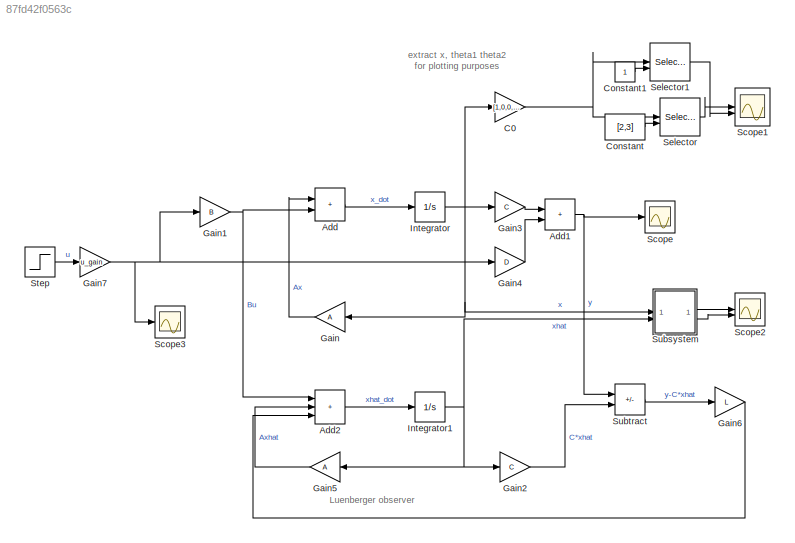
MODEL slx_87fd42f0563c
KIND model
CONFIG AbsTol = auto
CONFIG EnableMultiTasking = off
CONFIG FixedStep = auto
CONFIG MaxStep = auto
CONFIG MinStep = auto
CONFIG RelTol = 1e-3
CONFIG SampleTimeConstraint = Unconstrained
CONFIG SolverName = VariableStepAuto
CONFIG StartTime = 0.0
CONFIG StopTime = 30
BLOCK [Sum] Add
  IconShape = rectangular
BLOCK [Sum] Add1
  IconShape = rectangular
BLOCK [Sum] Add2
  IconShape = rectangular
  Inputs = +++
BLOCK [Gain] C0
  Gain = [1,0,0,0,0,0;0,0,1,0,0,0;0,0,0,0,1,0]
  Multiplication = Matrix(K*u)
BLOCK [Constant] Constant
  Value = [2,3]
BLOCK [Constant] Constant1
BLOCK [Gain] Gain
  Gain = A
  Multiplication = Matrix(K*u)
BLOCK [Gain] Gain1
  Gain = B
  Multiplication = Matrix(K*u)
BLOCK [Gain] Gain2
  Gain = C
  Multiplication = Matrix(K*u)
BLOCK [Gain] Gain3
  Gain = C
  Multiplication = Matrix(K*u)
BLOCK [Gain] Gain4
  Gain = D
  Multiplication = Matrix(K*u)
BLOCK [Gain] Gain5
  Gain = A
  Multiplication = Matrix(K*u)
BLOCK [Gain] Gain6
  Gain = L
  Multiplication = Matrix(K*u)
BLOCK [Gain] Gain7
  Gain = u_gain
BLOCK [Integrator] Integrator
  InitialCondition = init_state
BLOCK [Integrator] Integrator1
  InitialCondition = [0,0,0,0,0,0]'
BLOCK [Scope] Scope
  Floating = off
  NumInputPorts = 1
  ScopeSpecificationString = Simulink.scopes.TimeScopeBlockCfg('CurrentConfiguration', extmgr.ConfigurationSet(extmgr.Configuration('Core','General UI',true),extmgr.Configuration('Core','Source UI',true),extmgr.Configuration('Sources','WiredSimulink',true,'DataLoggingVariableName','ScopeData1'),extmgr.Configuration('Visuals','Time Domain',true),extmgr.Configuration('Tools','Plot Navigation',true),extmgr.Configuration('Tools',...<+40ch>
BLOCK [Scope] Scope1
  Floating = off
  NumInputPorts = 2
  ScopeSpecificationString = Simulink.scopes.TimeScopeBlockCfg('CurrentConfiguration', extmgr.ConfigurationSet(extmgr.Configuration('Core','General UI',true),extmgr.Configuration('Core','Source UI',true),extmgr.Configuration('Sources','WiredSimulink',true,'DataLoggingVariableName','ScopeData1'),extmgr.Configuration('Visuals','Time Domain',true,'SerializedDisplays',{struct('MinYLimReal','-0.42184','MaxYLimReal','0.40205','YLab...<+2130ch>
BLOCK [Scope] Scope2
  Floating = off
  NumInputPorts = 2
  ScopeSpecificationString = Simulink.scopes.TimeScopeBlockCfg('CurrentConfiguration', extmgr.ConfigurationSet(extmgr.Configuration('Core','General UI',true),extmgr.Configuration('Core','Source UI',true),extmgr.Configuration('Sources','WiredSimulink',true,'DataLoggingVariableName','ScopeData2'),extmgr.Configuration('Visuals','Time Domain',true,'SerializedDisplays',{struct('MinYLimReal','-1.6124','MaxYLimReal','5.73471','YLabe...<+2070ch>
BLOCK [Scope] Scope3
  Floating = off
  NumInputPorts = 1
  ScopeSpecificationString = Simulink.scopes.TimeScopeBlockCfg('CurrentConfiguration', extmgr.ConfigurationSet(extmgr.Configuration('Core','General UI',true),extmgr.Configuration('Core','Source UI',true),extmgr.Configuration('Sources','WiredSimulink',true,'DataLoggingVariableName','ScopeData3'),extmgr.Configuration('Visuals','Time Domain',true,'SerializedDisplays',{struct('MinYLimReal','90.00000','MaxYLimReal','110.00000','YL...<+1403ch>
BLOCK [Selector] Selector
  IndexOptions = Index vector (port)
  Indices = [1 3]
  InputPortWidth = 3
  OutputSizes = 1
BLOCK [Selector] Selector1
  IndexOptions = Index vector (port)
  Indices = [1 3]
  InputPortWidth = 3
  OutputSizes = 1
BLOCK [Step] Step
  SampleTime = 0
  Time = 0
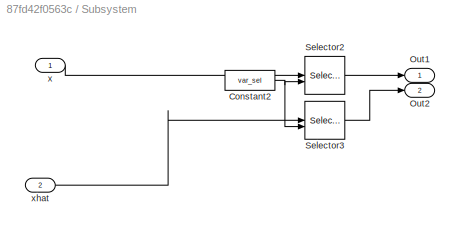
BLOCK [SubSystem] Subsystem
BLOCK [Constant] Subsystem/Constant2
  Value = var_sel
BLOCK [Outport] Subsystem/Out1
BLOCK [Outport] Subsystem/Out2
  Port = 2
BLOCK [Selector] Subsystem/Selector2
  IndexOptions = Index vector (port)
  Indices = [1 3]
  InputPortWidth = 6
  OutputSizes = 1
BLOCK [Selector] Subsystem/Selector3
  IndexOptions = Index vector (port)
  Indices = [1 3]
  InputPortWidth = 6
  OutputSizes = 1
BLOCK [Inport] Subsystem/x
BLOCK [Inport] Subsystem/xhat
  Port = 2
BLOCK [Sum] Subtract
  IconShape = rectangular
  Inputs = +-
ANNOTATION (root): Luenberger observer
ANNOTATION (root): extract x, theta1 theta2 for plotting purposes
NET Add1:1 -> Scope:1, Subtract:1
LINE Add2:1 -> Integrator1:1
LINE Add:1 -> Integrator:1
NET C0:1 -> Selector1:1, Selector:1
LINE Constant1:1 -> Selector1:2
LINE Constant:1 -> Selector:2
NET Gain1:1 -> Add2:1, Add:2
LINE Gain2:1 -> Subtract:2
LINE Gain3:1 -> Add1:1
LINE Gain4:1 -> Add1:2
LINE Gain5:1 -> Add2:2
LINE Gain6:1 -> Add2:3
NET Gain7:1 -> Gain1:1, Gain4:1, Scope3:1
LINE Gain:1 -> Add:1
NET Integrator1:1 -> Gain2:1, Gain5:1, Subsystem:2
NET Integrator:1 -> C0:1, Gain3:1, Gain:1, Subsystem:1
LINE Selector1:1 -> Scope1:2
LINE Selector:1 -> Scope1:1
LINE Step:1 -> Gain7:1
NET Subsystem/Constant2:1 -> Subsystem/Selector2:2, Subsystem/Selector3:2
LINE Subsystem/Selector2:1 -> Subsystem/Out1:1
LINE Subsystem/Selector3:1 -> Subsystem/Out2:1
LINE Subsystem/x:1 -> Subsystem/Selector2:1
LINE Subsystem/xhat:1 -> Subsystem/Selector3:1
LINE Subsystem:1 -> Scope2:1
LINE Subsystem:2 -> Scope2:2
LINE Subtract:1 -> Gain6:1
note: NET lines group one-source signal fan-out (src -> all destinations, sorted); 1:1 wires keep LINE
